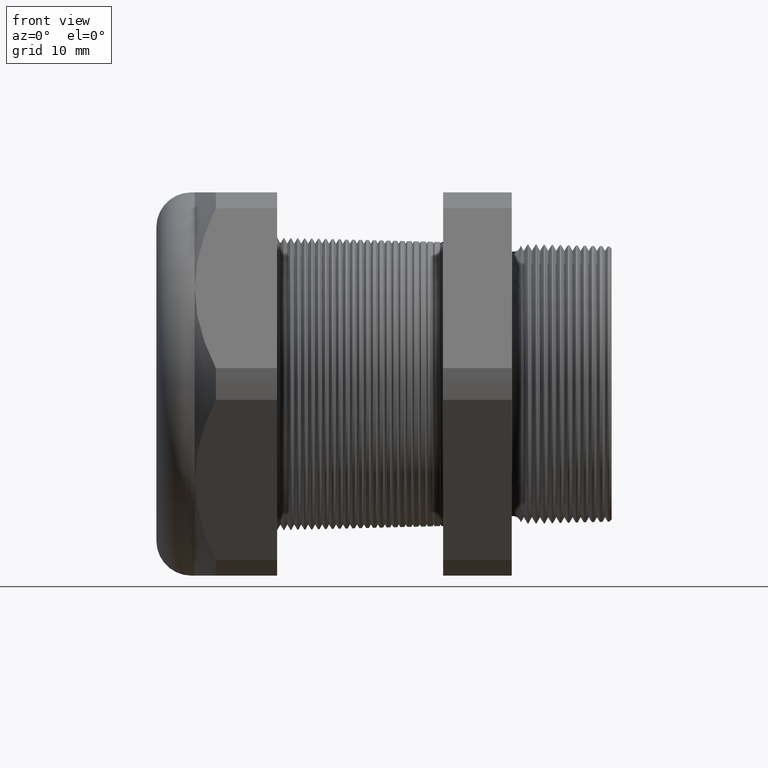
[diagram: clean part render]
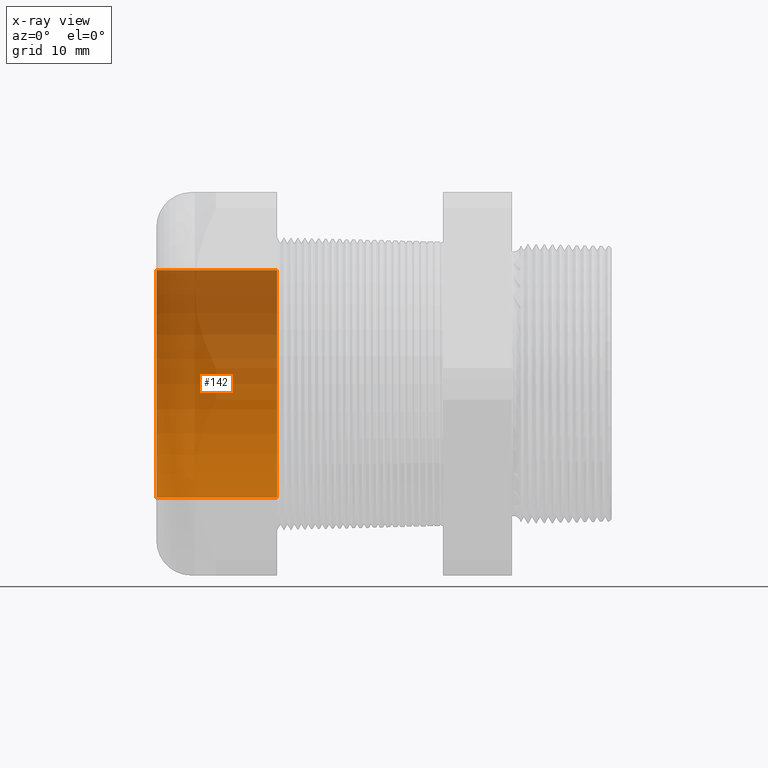
[diagram: x-ray — body ghosted, one internal face saturated and labeled with its STEP entity id]
A machine part, front view, then the same camera in x-ray: the body is ghosted and one INTERNAL B-rep face — a face not visible from any outside direction — is saturated and labeled: STEP entity #142.
In plain terms, the highlighted cylindrical surface (partial cylindrical patch) has radius 12.446 mm, axis along (1, 0, 0).
Its self-contained STEP definition (entity closure, byte-faithful):
#120 = ORIENTED_EDGE ( 'NONE', *, *, #121, .F. ) ;
#121 = EDGE_CURVE ( 'NONE', #6936, #6886, #1556, .T. ) ;
#122 = ORIENTED_EDGE ( 'NONE', *, *, #6922, .T. ) ;
#123 = ORIENTED_EDGE ( 'NONE', *, *, #141, .T. ) ;
#141 = EDGE_CURVE ( 'NONE', #6927, #6933, #1593, .T. ) ;
#142 = ADVANCED_FACE ( 'NONE', ( #1584 ), #1583, .F. ) ;
#143 = EDGE_LOOP ( 'NONE', ( #144, #120, #122, #123 ) ) ;
#144 = ORIENTED_EDGE ( 'NONE', *, *, #6924, .F. ) ;
#1552 = DIRECTION ( 'NONE',  ( 0.0000000000000000000, 0.0000000000000000000, -1.000000000000000000 ) ) ;
#1553 = DIRECTION ( 'NONE',  ( 1.000000000000000000, 0.0000000000000000000, 0.0000000000000000000 ) ) ;
#1554 = CARTESIAN_POINT ( 'NONE',  ( -1.839999999999999400, 0.0000000000000000000, 0.0000000000000000000 ) ) ;
#1555 = AXIS2_PLACEMENT_3D ( 'NONE', #1554, #1553, #1552 ) ;
#1556 = CIRCLE ( 'NONE', #1555, 0.4899999999999998800 ) ;
#1578 = DIRECTION ( 'NONE',  ( 0.0000000000000000000, 0.0000000000000000000, -1.000000000000000000 ) ) ;
#1579 = DIRECTION ( 'NONE',  ( 1.000000000000000000, 0.0000000000000000000, 0.0000000000000000000 ) ) ;
#1580 = CARTESIAN_POINT ( 'NONE',  ( 0.0000000000000000000, 0.0000000000000000000, 0.0000000000000000000 ) ) ;
#1581 = AXIS2_PLACEMENT_3D ( 'NONE', #1580, #1579, #1578 ) ;
#1583 = CYLINDRICAL_SURFACE ( 'NONE', #1581, 0.4899999999999999900 ) ;
#1584 = FACE_OUTER_BOUND ( 'NONE', #143, .T. ) ;
#1585 = DIRECTION ( 'NONE',  ( 0.0000000000000000000, 0.0000000000000000000, -1.000000000000000000 ) ) ;
#1586 = DIRECTION ( 'NONE',  ( 1.000000000000000000, 0.0000000000000000000, 0.0000000000000000000 ) ) ;
#1587 = CARTESIAN_POINT ( 'NONE',  ( -1.320314960629920700, 0.0000000000000000000, 0.0000000000000000000 ) ) ;
#1588 = AXIS2_PLACEMENT_3D ( 'NONE', #1587, #1586, #1585 ) ;
#1593 = CIRCLE ( 'NONE', #1588, 0.4899999999999999900 ) ;
#5052 = CARTESIAN_POINT ( 'NONE',  ( -1.839999999999999400, 6.000769315822029800E-017, 0.4899999999999998800 ) ) ;
#5090 = CARTESIAN_POINT ( 'NONE',  ( -1.320314960629920700, 0.0000000000000000000, 0.4899999999999999900 ) ) ;
#5092 = CARTESIAN_POINT ( 'NONE',  ( -1.320314960629920700, 6.000769315822029800E-017, -0.4899999999999999900 ) ) ;
#5094 = DIRECTION ( 'NONE',  ( 1.000000000000000000, 0.0000000000000000000, 0.0000000000000000000 ) ) ;
#5095 = VECTOR ( 'NONE', #5094, 39.37007874015748100 ) ;
#5096 = CARTESIAN_POINT ( 'NONE',  ( 0.0000000000000000000, 6.000769315822029800E-017, 0.4899999999999999900 ) ) ;
#5097 = LINE ( 'NONE', #5096, #5095 ) ;
#5098 = DIRECTION ( 'NONE',  ( 1.000000000000000000, 0.0000000000000000000, 0.0000000000000000000 ) ) ;
#5099 = VECTOR ( 'NONE', #5098, 39.37007874015748100 ) ;
#5100 = CARTESIAN_POINT ( 'NONE',  ( 0.0000000000000000000, 0.0000000000000000000, -0.4899999999999999900 ) ) ;
#5101 = LINE ( 'NONE', #5100, #5099 ) ;
#5142 = CARTESIAN_POINT ( 'NONE',  ( -1.839999999999999400, 0.0000000000000000000, -0.4899999999999998800 ) ) ;
#6886 = VERTEX_POINT ( 'NONE', #5052 ) ;
#6922 = EDGE_CURVE ( 'NONE', #6936, #6927, #5101, .T. ) ;
#6924 = EDGE_CURVE ( 'NONE', #6886, #6933, #5097, .T. ) ;
#6927 = VERTEX_POINT ( 'NONE', #5092 ) ;
#6933 = VERTEX_POINT ( 'NONE', #5090 ) ;
#6936 = VERTEX_POINT ( 'NONE', #5142 ) ;